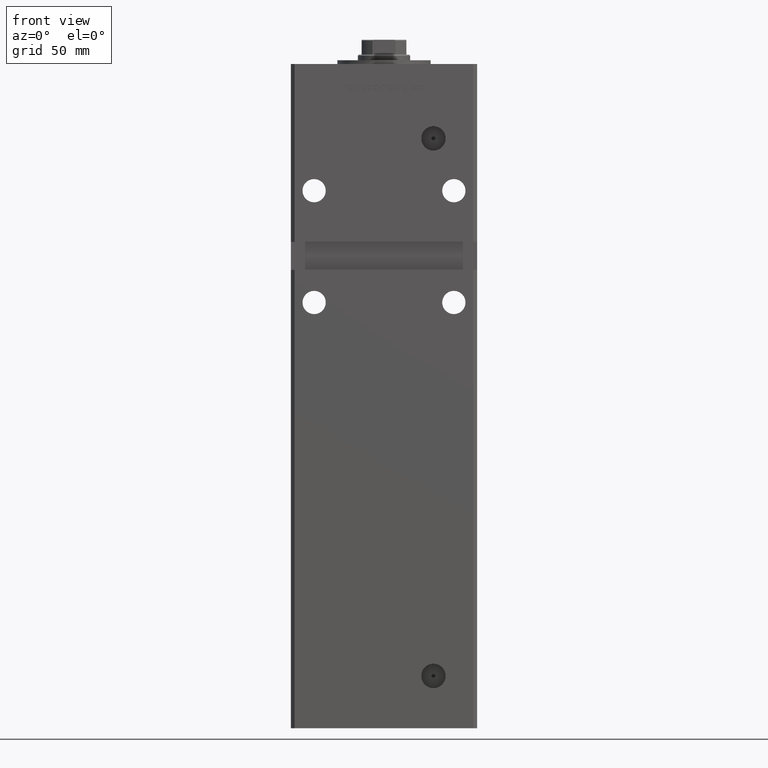
[diagram: clean part render]
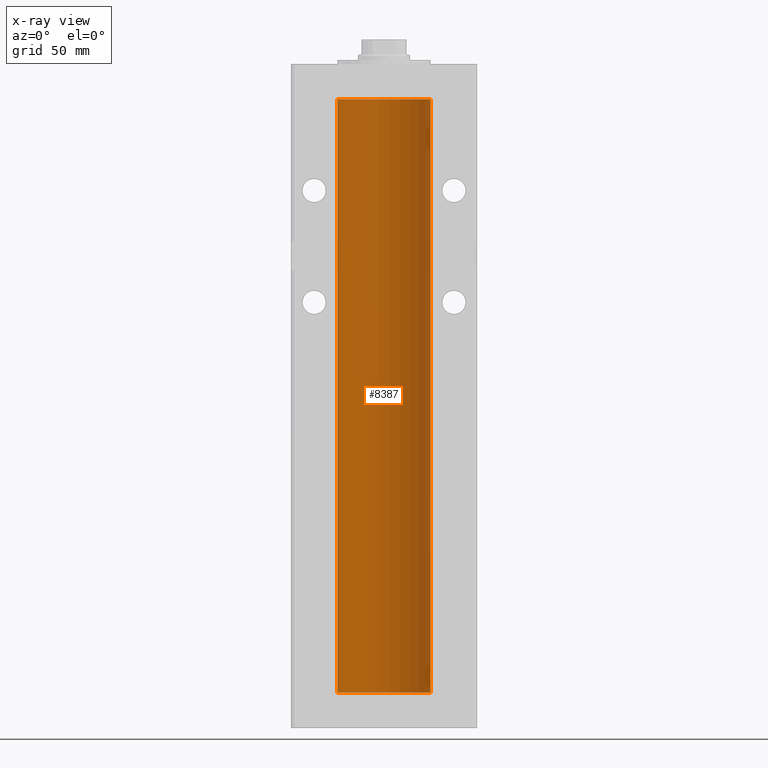
[diagram: x-ray — body ghosted, one internal face saturated and labeled with its STEP entity id]
A machine part, front view, then the same camera in x-ray: the body is ghosted and one INTERNAL B-rep face — a face not visible from any outside direction — is saturated and labeled: STEP entity #8387.
In plain terms, the highlighted cylindrical surface (partial cylindrical patch) has radius 25 mm, axis along (-0, -0, -1).
Its self-contained STEP definition (entity closure, byte-faithful):
#711 = ORIENTED_EDGE ( 'NONE', *, *, #29009, .T. ) ;
#1774 = LINE ( 'NONE', #27004, #24610 ) ;
#2497 = CIRCLE ( 'NONE', #11090, 25.00000000000000000 ) ;
#8235 = VERTEX_POINT ( 'NONE', #24675 ) ;
#8387 = ADVANCED_FACE ( 'NONE', ( #17163 ), #41837, .F. ) ;
#11090 = AXIS2_PLACEMENT_3D ( 'NONE', #50529, #26612, #17764 ) ;
#13062 = VERTEX_POINT ( 'NONE', #48532 ) ;
#13357 = CARTESIAN_POINT ( 'NONE',  ( -25.00000000000000000, 0.000000000000000000, 318.5000000000000000 ) ) ;
#16380 = AXIS2_PLACEMENT_3D ( 'NONE', #50172, #29743, #34028 ) ;
#17163 = FACE_OUTER_BOUND ( 'NONE', #45717, .T. ) ;
#17764 = DIRECTION ( 'NONE',  ( 1.000000000000000000, 0.000000000000000000, 0.000000000000000000 ) ) ;
#20712 = DIRECTION ( 'NONE',  ( 1.000000000000000000, 0.000000000000000000, 0.000000000000000000 ) ) ;
#21325 = VERTEX_POINT ( 'NONE', #34348 ) ;
#24610 = VECTOR ( 'NONE', #26210, 1000.000000000000000 ) ;
#24675 = CARTESIAN_POINT ( 'NONE',  ( -25.00000000000000000, 0.000000000000000000, 318.5000000000000000 ) ) ;
#24726 = CARTESIAN_POINT ( 'NONE',  ( 0.000000000000000000, 0.000000000000000000, 318.5000000000000000 ) ) ;
#26210 = DIRECTION ( 'NONE',  ( -0.000000000000000000, -0.000000000000000000, -1.000000000000000000 ) ) ;
#26612 = DIRECTION ( 'NONE',  ( -0.000000000000000000, 0.000000000000000000, 1.000000000000000000 ) ) ;
#26998 = ORIENTED_EDGE ( 'NONE', *, *, #32444, .T. ) ;
#27004 = CARTESIAN_POINT ( 'NONE',  ( 25.00000000000000000, 3.061616997868383043E-15, 318.5000000000000000 ) ) ;
#28168 = CARTESIAN_POINT ( 'NONE',  ( 25.00000000000000000, 3.061616997868383043E-15, 318.5000000000000000 ) ) ;
#29009 = EDGE_CURVE ( 'NONE', #8235, #21325, #29988, .T. ) ;
#29139 = ORIENTED_EDGE ( 'NONE', *, *, #42722, .F. ) ;
#29743 = DIRECTION ( 'NONE',  ( -0.000000000000000000, -0.000000000000000000, -1.000000000000000000 ) ) ;
#29988 = LINE ( 'NONE', #13357, #52775 ) ;
#32444 = EDGE_CURVE ( 'NONE', #48529, #8235, #45142, .T. ) ;
#34028 = DIRECTION ( 'NONE',  ( -1.000000000000000000, 0.000000000000000000, 0.000000000000000000 ) ) ;
#34256 = EDGE_CURVE ( 'NONE', #48529, #13062, #1774, .T. ) ;
#34348 = CARTESIAN_POINT ( 'NONE',  ( -25.00000000000000000, 0.000000000000000000, 0.000000000000000000 ) ) ;
#41116 = DIRECTION ( 'NONE',  ( -0.000000000000000000, 0.000000000000000000, 1.000000000000000000 ) ) ;
#41837 = CYLINDRICAL_SURFACE ( 'NONE', #16380, 25.00000000000000000 ) ;
#42722 = EDGE_CURVE ( 'NONE', #13062, #21325, #2497, .T. ) ;
#45142 = CIRCLE ( 'NONE', #51998, 25.00000000000000000 ) ;
#45341 = DIRECTION ( 'NONE',  ( -0.000000000000000000, -0.000000000000000000, -1.000000000000000000 ) ) ;
#45717 = EDGE_LOOP ( 'NONE', ( #50859, #26998, #711, #29139 ) ) ;
#48529 = VERTEX_POINT ( 'NONE', #28168 ) ;
#48532 = CARTESIAN_POINT ( 'NONE',  ( 25.00000000000000000, 3.061616997868383043E-15, 0.000000000000000000 ) ) ;
#50172 = CARTESIAN_POINT ( 'NONE',  ( 0.000000000000000000, 0.000000000000000000, 318.5000000000000000 ) ) ;
#50529 = CARTESIAN_POINT ( 'NONE',  ( 0.000000000000000000, 0.000000000000000000, 0.000000000000000000 ) ) ;
#50859 = ORIENTED_EDGE ( 'NONE', *, *, #34256, .F. ) ;
#51998 = AXIS2_PLACEMENT_3D ( 'NONE', #24726, #41116, #20712 ) ;
#52775 = VECTOR ( 'NONE', #45341, 1000.000000000000000 ) ;